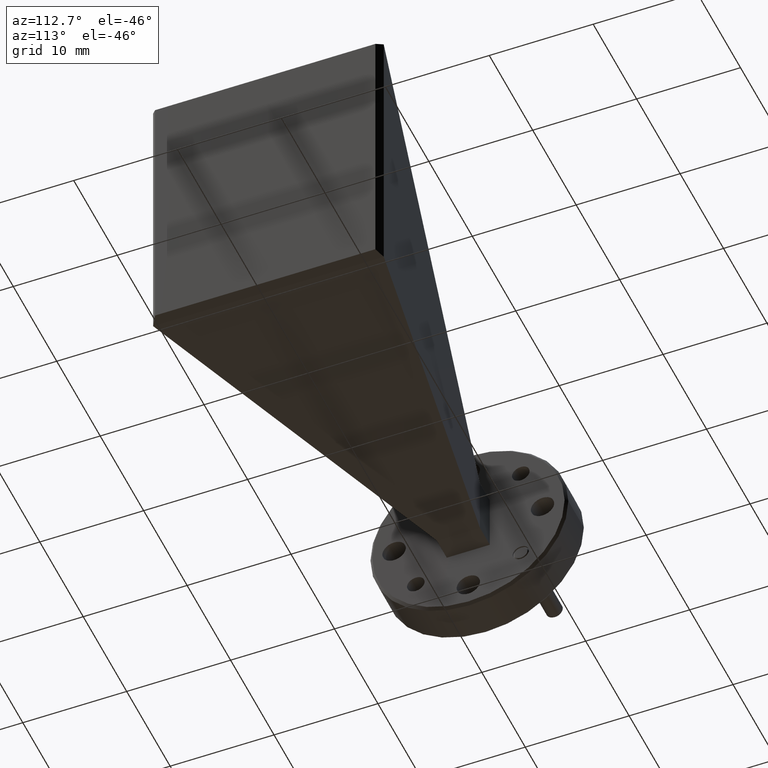
[diagram: clean part render]
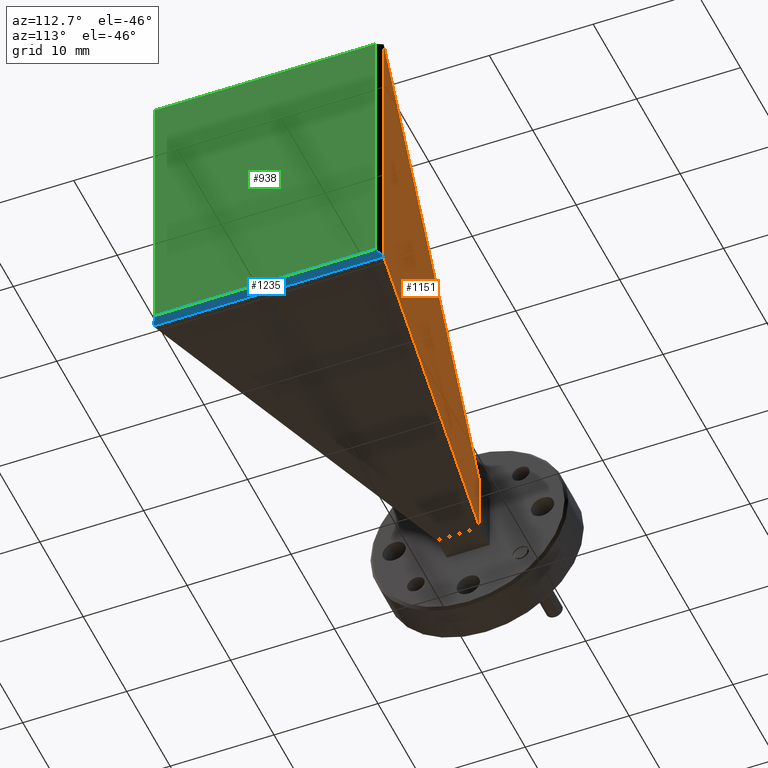
[diagram: same view with three faces highlighted in distinct colors, each labeled with its STEP entity id]
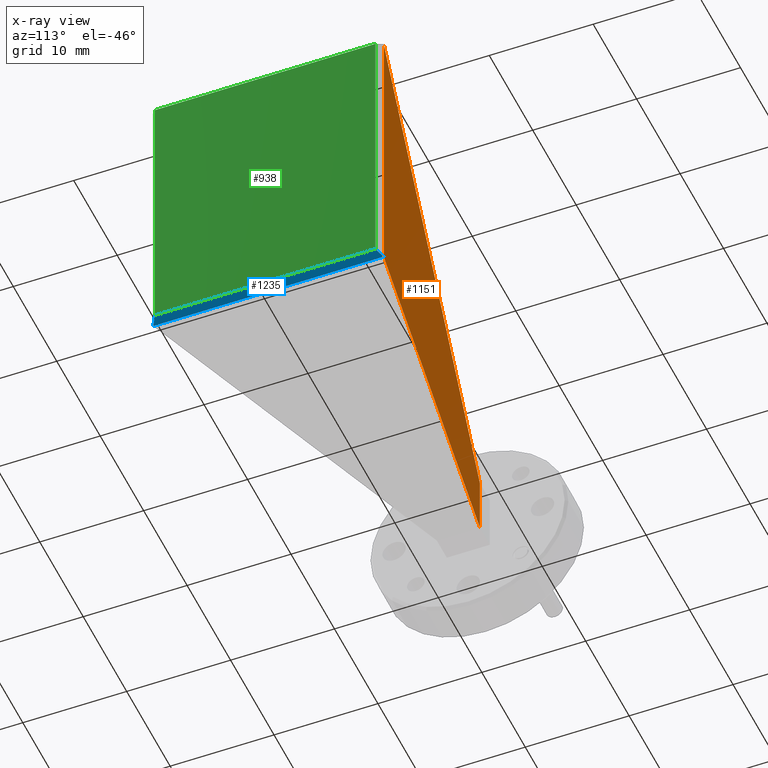
[diagram: x-ray of the same camera — body ghosted, the three highlighted faces saturated]
A machine part, auxiliary view with three faces highlighted in distinct colors.
The next image is the same camera in x-ray (body ghosted, the three faces saturated) — at least one of them is partly hidden behind the body in this view.
Their STEP definitions:

[orange] entity #1151 — the highlighted planar face has unit normal (-0.2023, 0.9793, 0).
#7 = CARTESIAN_POINT ( 'NONE',  ( -3.520880454576212237, 0.8486933872041693139, 2.651483861534751796 ) ) ;
#17 = EDGE_CURVE ( 'NONE', #1539, #636, #2556, .T. ) ;
#244 = DIRECTION ( 'NONE',  ( -0.2023002634719968107, 0.9793235437786435016, 0.000000000000000000 ) ) ;
#294 = ORIENTED_EDGE ( 'NONE', *, *, #330, .F. ) ;
#314 = DIRECTION ( 'NONE',  ( 0.000000000000000000, 0.000000000000000000, 1.000000000000000000 ) ) ;
#330 = EDGE_CURVE ( 'NONE', #1797, #2386, #630, .T. ) ;
#422 = PLANE ( 'NONE',  #1626 ) ;
#488 = EDGE_CURVE ( 'NONE', #636, #2386, #752, .T. ) ;
#630 = LINE ( 'NONE', #7, #2428 ) ;
#636 = VERTEX_POINT ( 'NONE', #1201 ) ;
#727 = DIRECTION ( 'NONE',  ( -0.9522052365154264342, -0.1966983960001948417, 0.2336983709047871782 ) ) ;
#752 = LINE ( 'NONE', #2147, #974 ) ;
#799 = ORIENTED_EDGE ( 'NONE', *, *, #17, .T. ) ;
#847 = DIRECTION ( 'NONE',  ( -0.9522052365154264342, -0.1966983960001948417, -0.2336983709047867896 ) ) ;
#927 = CARTESIAN_POINT ( 'NONE',  ( -3.550260160889571637, 0.8426243793000095517, 2.644273242185272821 ) ) ;
#974 = VECTOR ( 'NONE', #314, 39.37007874015748143 ) ;
#1067 = CARTESIAN_POINT ( 'NONE',  ( -5.270880454576207796, 0.4871933872041554481, 2.221983861534751803 ) ) ;
#1105 = EDGE_CURVE ( 'NONE', #1797, #1539, #1388, .T. ) ;
#1151 = ADVANCED_FACE ( 'NONE', ( #1673 ), #422, .T. ) ;
#1201 = CARTESIAN_POINT ( 'NONE',  ( -5.270880454576205132, 0.4871933872041557256, 1.997983861534752048 ) ) ;
#1225 = ORIENTED_EDGE ( 'NONE', *, *, #1105, .T. ) ;
#1232 = VECTOR ( 'NONE', #727, 39.37007874015748854 ) ;
#1263 = CARTESIAN_POINT ( 'NONE',  ( -3.762861702752161364, 0.7987069750809641100, 2.109983861534752148 ) ) ;
#1308 = CARTESIAN_POINT ( 'NONE',  ( -3.520880454576212237, 0.8486933872041693139, 1.568483861534751833 ) ) ;
#1388 = LINE ( 'NONE', #1581, #1529 ) ;
#1492 = ORIENTED_EDGE ( 'NONE', *, *, #488, .T. ) ;
#1529 = VECTOR ( 'NONE', #2398, 39.37007874015748143 ) ;
#1539 = VERTEX_POINT ( 'NONE', #2268 ) ;
#1581 = CARTESIAN_POINT ( 'NONE',  ( -3.550260160889571637, 0.8426243793000095517, 1.568483861534752277 ) ) ;
#1626 = AXIS2_PLACEMENT_3D ( 'NONE', #1263, #244, #2455 ) ;
#1673 = FACE_OUTER_BOUND ( 'NONE', #2153, .T. ) ;
#1797 = VERTEX_POINT ( 'NONE', #927 ) ;
#2147 = CARTESIAN_POINT ( 'NONE',  ( -5.270880454576205132, 0.4871933872041556146, 2.109983861534752148 ) ) ;
#2153 = EDGE_LOOP ( 'NONE', ( #294, #1225, #799, #1492 ) ) ;
#2268 = CARTESIAN_POINT ( 'NONE',  ( -3.550260160889571637, 0.8426243793000095517, 1.575694480884230586 ) ) ;
#2386 = VERTEX_POINT ( 'NONE', #1067 ) ;
#2398 = DIRECTION ( 'NONE',  ( 0.000000000000000000, 0.000000000000000000, -1.000000000000000000 ) ) ;
#2428 = VECTOR ( 'NONE', #847, 39.37007874015748854 ) ;
#2455 = DIRECTION ( 'NONE',  ( -0.9793235437786435016, -0.2023002634719968107, 0.000000000000000000 ) ) ;
#2556 = LINE ( 'NONE', #1308, #1232 ) ;

[blue] entity #1235 — the highlighted planar face has unit normal (0.5182, 0, -0.8553).
#202 = CARTESIAN_POINT ( 'NONE',  ( -3.520880454576206464, -0.01191782169673881106, 1.593286822860864982 ) ) ;
#251 = ORIENTED_EDGE ( 'NONE', *, *, #1946, .F. ) ;
#261 = AXIS2_PLACEMENT_3D ( 'NONE', #2111, #2331, #300 ) ;
#300 = DIRECTION ( 'NONE',  ( 6.829665150418664741E-15, -1.000000000000000000, -1.264861494672061582E-15 ) ) ;
#302 = LINE ( 'NONE', #1898, #311 ) ;
#311 = VECTOR ( 'NONE', #699, 39.37007874015748143 ) ;
#409 = ORIENTED_EDGE ( 'NONE', *, *, #2031, .F. ) ;
#493 = ORIENTED_EDGE ( 'NONE', *, *, #909, .F. ) ;
#699 = DIRECTION ( 'NONE',  ( 0.7454583371420344662, -0.4902054942560706285, 0.4516530094957791341 ) ) ;
#803 = CARTESIAN_POINT ( 'NONE',  ( -3.653470411640097115, -0.09910757087183388880, 1.512954160184623476 ) ) ;
#849 = CARTESIAN_POINT ( 'NONE',  ( -3.550015798476558349, -0.03730661279583089712, 1.575634507366295178 ) ) ;
#884 = DIRECTION ( 'NONE',  ( -6.829665150418664741E-15, 1.000000000000000000, 1.264861494672061582E-15 ) ) ;
#909 = EDGE_CURVE ( 'NONE', #1711, #2465, #1857, .T. ) ;
#967 = ORIENTED_EDGE ( 'NONE', *, *, #2484, .T. ) ;
#1071 = EDGE_LOOP ( 'NONE', ( #967, #409, #251, #493 ) ) ;
#1117 = FACE_OUTER_BOUND ( 'NONE', #1071, .T. ) ;
#1235 = ADVANCED_FACE ( 'NONE', ( #1117 ), #1517, .T. ) ;
#1290 = VECTOR ( 'NONE', #884, 39.37007874015748143 ) ;
#1312 = CARTESIAN_POINT ( 'NONE',  ( -3.520880454576212237, 0.8486933872041693139, 1.593286822860866092 ) ) ;
#1514 = CARTESIAN_POINT ( 'NONE',  ( -3.520880454576211793, 0.8233045961050776684, 1.593286822860866092 ) ) ;
#1517 = PLANE ( 'NONE',  #261 ) ;
#1519 = CARTESIAN_POINT ( 'NONE',  ( -3.550015798476558349, -0.03107691476121371074, 1.575634507366295178 ) ) ;
#1655 = DIRECTION ( 'NONE',  ( 6.829665150418666319E-15, -1.000000000000000000, -1.264861494672061780E-15 ) ) ;
#1703 = CARTESIAN_POINT ( 'NONE',  ( -3.550015798476564122, 0.8424636891695522767, 1.575634507366296289 ) ) ;
#1711 = VERTEX_POINT ( 'NONE', #1703 ) ;
#1720 = VERTEX_POINT ( 'NONE', #1514 ) ;
#1857 = LINE ( 'NONE', #849, #1958 ) ;
#1888 = VECTOR ( 'NONE', #2249, 39.37007874015748143 ) ;
#1898 = CARTESIAN_POINT ( 'NONE',  ( -3.346914502934924318, 0.7089064318361113504, 1.698688079636419435 ) ) ;
#1946 = EDGE_CURVE ( 'NONE', #2465, #2355, #2296, .T. ) ;
#1958 = VECTOR ( 'NONE', #1655, 39.37007874015748143 ) ;
#2031 = EDGE_CURVE ( 'NONE', #2355, #1720, #2561, .T. ) ;
#2111 = CARTESIAN_POINT ( 'NONE',  ( -3.520880454576203800, -0.3747527428586851506, 1.593286822860864760 ) ) ;
#2249 = DIRECTION ( 'NONE',  ( 0.7454583371420281379, 0.4902054942560790107, 0.4516530094957805774 ) ) ;
#2296 = LINE ( 'NONE', #803, #1888 ) ;
#2331 = DIRECTION ( 'NONE',  ( 0.5181843028931232276, 4.620822075415402748E-15, -0.8552689800496495742 ) ) ;
#2355 = VERTEX_POINT ( 'NONE', #202 ) ;
#2465 = VERTEX_POINT ( 'NONE', #1519 ) ;
#2484 = EDGE_CURVE ( 'NONE', #1711, #1720, #302, .T. ) ;
#2561 = LINE ( 'NONE', #1312, #1290 ) ;

[green] entity #938 — the highlighted planar face has unit normal (-1, -0, 0).
#3 = LINE ( 'NONE', #1676, #680 ) ;
#62 = EDGE_LOOP ( 'NONE', ( #1125, #1216, #828, #1938 ) ) ;
#67 = VECTOR ( 'NONE', #1268, 39.37007874015748143 ) ;
#202 = CARTESIAN_POINT ( 'NONE',  ( -3.520880454576206464, -0.01191782169673881106, 1.593286822860864982 ) ) ;
#303 = EDGE_CURVE ( 'NONE', #761, #2355, #1065, .T. ) ;
#486 = DIRECTION ( 'NONE',  ( 6.829665150418664741E-15, -1.000000000000000000, 0.000000000000000000 ) ) ;
#661 = PLANE ( 'NONE',  #1527 ) ;
#669 = CARTESIAN_POINT ( 'NONE',  ( -3.520880454576206464, -0.01191782169673881106, 1.568483861534752277 ) ) ;
#680 = VECTOR ( 'NONE', #1852, 39.37007874015748143 ) ;
#725 = EDGE_CURVE ( 'NONE', #1192, #761, #3, .T. ) ;
#761 = VERTEX_POINT ( 'NONE', #1049 ) ;
#828 = ORIENTED_EDGE ( 'NONE', *, *, #2031, .T. ) ;
#884 = DIRECTION ( 'NONE',  ( -6.829665150418664741E-15, 1.000000000000000000, 1.264861494672061582E-15 ) ) ;
#938 = ADVANCED_FACE ( 'NONE', ( #1666 ), #661, .F. ) ;
#1049 = CARTESIAN_POINT ( 'NONE',  ( -3.520880454576206464, -0.01191782169673881106, 2.626680900208638647 ) ) ;
#1065 = LINE ( 'NONE', #669, #67 ) ;
#1125 = ORIENTED_EDGE ( 'NONE', *, *, #725, .T. ) ;
#1192 = VERTEX_POINT ( 'NONE', #2246 ) ;
#1216 = ORIENTED_EDGE ( 'NONE', *, *, #303, .T. ) ;
#1268 = DIRECTION ( 'NONE',  ( 0.000000000000000000, 0.000000000000000000, -1.000000000000000000 ) ) ;
#1290 = VECTOR ( 'NONE', #884, 39.37007874015748143 ) ;
#1312 = CARTESIAN_POINT ( 'NONE',  ( -3.520880454576212237, 0.8486933872041693139, 1.593286822860866092 ) ) ;
#1412 = LINE ( 'NONE', #2458, #2104 ) ;
#1468 = DIRECTION ( 'NONE',  ( -1.000000000000000000, -6.829665150418664741E-15, 0.000000000000000000 ) ) ;
#1514 = CARTESIAN_POINT ( 'NONE',  ( -3.520880454576211793, 0.8233045961050776684, 1.593286822860866092 ) ) ;
#1527 = AXIS2_PLACEMENT_3D ( 'NONE', #1691, #1468, #486 ) ;
#1666 = FACE_OUTER_BOUND ( 'NONE', #62, .T. ) ;
#1676 = CARTESIAN_POINT ( 'NONE',  ( -3.520880454576206464, -0.03730661279583076528, 2.626680900208638647 ) ) ;
#1691 = CARTESIAN_POINT ( 'NONE',  ( -3.520880454576203800, -0.3747527428586858167, 2.109983861534752148 ) ) ;
#1720 = VERTEX_POINT ( 'NONE', #1514 ) ;
#1852 = DIRECTION ( 'NONE',  ( 6.829665150418664741E-15, -1.000000000000000000, 1.264861494672062766E-15 ) ) ;
#1914 = EDGE_CURVE ( 'NONE', #1720, #1192, #1412, .T. ) ;
#1938 = ORIENTED_EDGE ( 'NONE', *, *, #1914, .T. ) ;
#2031 = EDGE_CURVE ( 'NONE', #2355, #1720, #2561, .T. ) ;
#2104 = VECTOR ( 'NONE', #2416, 39.37007874015748143 ) ;
#2246 = CARTESIAN_POINT ( 'NONE',  ( -3.520880454576211793, 0.8233045961050776684, 2.626680900208637759 ) ) ;
#2355 = VERTEX_POINT ( 'NONE', #202 ) ;
#2416 = DIRECTION ( 'NONE',  ( 0.000000000000000000, 0.000000000000000000, 1.000000000000000000 ) ) ;
#2458 = CARTESIAN_POINT ( 'NONE',  ( -3.520880454576211793, 0.8233045961050776684, 2.651483861534751796 ) ) ;
#2561 = LINE ( 'NONE', #1312, #1290 ) ;